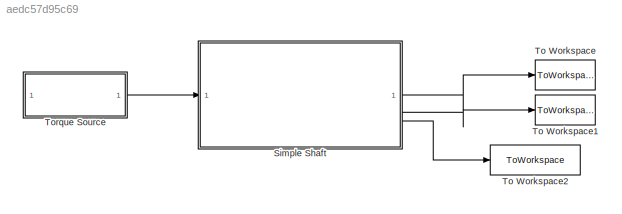
MODEL slx_aedc57d95c69
KIND model
CONFIG AbsTol = auto
CONFIG EnableMultiTasking = off
CONFIG FixedStep = .001
CONFIG MaxStep = auto
CONFIG MinStep = auto
CONFIG RelTol = 1e-3
CONFIG SampleTimeConstraint = Unconstrained
CONFIG SolverName = FixedStepAuto
CONFIG StartTime = 0.0
CONFIG StopTime = 25
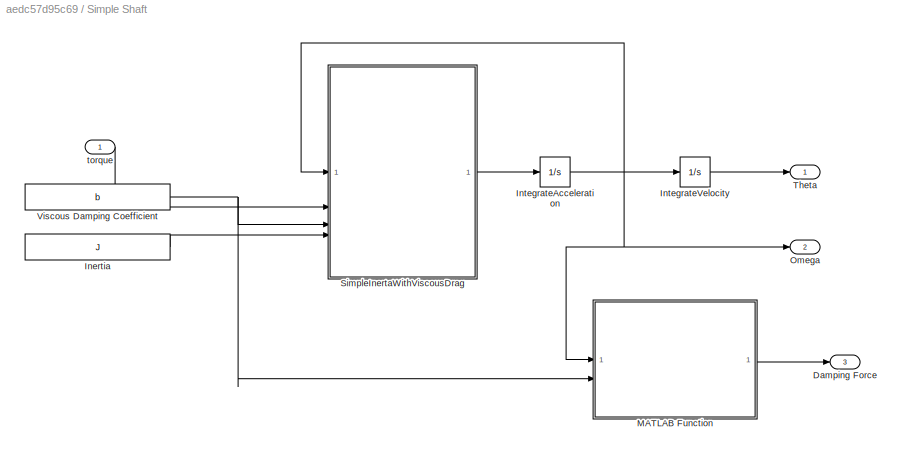
BLOCK [SubSystem] Simple Shaft
BLOCK [Outport] Simple Shaft/Damping Force
  Port = 3
BLOCK [Constant] Simple Shaft/Inertia
  Value = J
BLOCK [Integrator] Simple Shaft/IntegrateAcceleration
  InitialCondition = omega0
BLOCK [Integrator] Simple Shaft/IntegrateVelocity
  InitialCondition = theta0
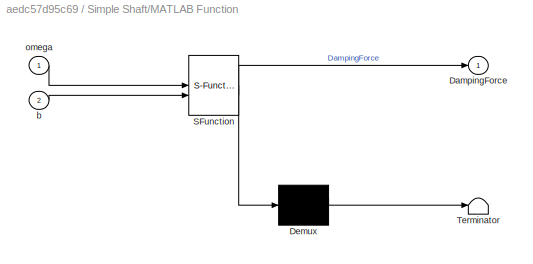
BLOCK [SubSystem] Simple Shaft/MATLAB Function
  ErrorFcn = Stateflow.Translate.translate
  PermitHierarchicalResolution = ExplicitOnly
  SFBlockType = MATLAB Function
  TreatAsAtomicUnit = on
BLOCK [Demux] Simple Shaft/MATLAB Function/ Demux 
  Outputs = 1
BLOCK [S-Function] Simple Shaft/MATLAB Function/ SFunction 
  EnableBusSupport = on
  FunctionName = sf_sfun
  PortCounts = [2 2]
  SFcnIsStateOwnerBlock = off
  SFunctionDeploymentMode = off
  Tag = Stateflow S-Function 1
BLOCK [Terminator] Simple Shaft/MATLAB Function/ Terminator 
BLOCK [Outport] Simple Shaft/MATLAB Function/DampingForce
  VectorParamsAs1DForOutWhenUnconnected = off
BLOCK [Inport] Simple Shaft/MATLAB Function/b
  Port = 2
BLOCK [Inport] Simple Shaft/MATLAB Function/omega
BLOCK [Outport] Simple Shaft/Omega
  Port = 2
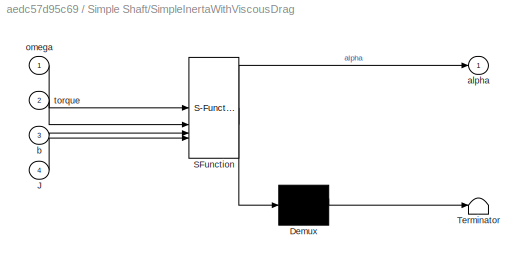
BLOCK [SubSystem] Simple Shaft/SimpleInertaWithViscousDrag
  ErrorFcn = Stateflow.Translate.translate
  PermitHierarchicalResolution = ExplicitOnly
  SFBlockType = MATLAB Function
  TreatAsAtomicUnit = on
BLOCK [Demux] Simple Shaft/SimpleInertaWithViscousDrag/ Demux 
  Outputs = 1
BLOCK [S-Function] Simple Shaft/SimpleInertaWithViscousDrag/ SFunction 
  EnableBusSupport = on
  FunctionName = sf_sfun
  PortCounts = [4 2]
  SFcnIsStateOwnerBlock = off
  SFunctionDeploymentMode = off
  Tag = Stateflow S-Function 2
BLOCK [Terminator] Simple Shaft/SimpleInertaWithViscousDrag/ Terminator 
BLOCK [Inport] Simple Shaft/SimpleInertaWithViscousDrag/J
  Port = 4
BLOCK [Outport] Simple Shaft/SimpleInertaWithViscousDrag/alpha
BLOCK [Inport] Simple Shaft/SimpleInertaWithViscousDrag/b
  Port = 3
BLOCK [Inport] Simple Shaft/SimpleInertaWithViscousDrag/omega
BLOCK [Inport] Simple Shaft/SimpleInertaWithViscousDrag/torque
  Port = 2
BLOCK [Outport] Simple Shaft/Theta
BLOCK [Constant] Simple Shaft/Viscous Damping Coefficient
  Value = b
BLOCK [Inport] Simple Shaft/torque
BLOCK [ToWorkspace] To Workspace
  FixptAsFi = on
  MaxDataPoints = inf
  SampleTime = -1
  SaveFormat = Timeseries
  VariableName = theta
BLOCK [ToWorkspace] To Workspace1
  FixptAsFi = on
  MaxDataPoints = inf
  SampleTime = -1
  SaveFormat = Timeseries
  VariableName = omega
BLOCK [ToWorkspace] To Workspace2
  FixptAsFi = on
  MaxDataPoints = inf
  SampleTime = -1
  SaveFormat = Timeseries
  VariableName = DampingForce
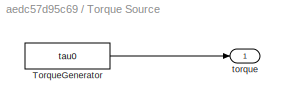
BLOCK [SubSystem] Torque Source
BLOCK [Constant] Torque Source/TorqueGenerator
  Value = tau0
BLOCK [Outport] Torque Source/torque
LINE Simple Shaft/Inertia:1 -> Simple Shaft/SimpleInertaWithViscousDrag:4
NET Simple Shaft/IntegrateAcceleration:1 -> Simple Shaft/IntegrateVelocity:1, Simple Shaft/MATLAB Function:1, Simple Shaft/Omega:1, Simple Shaft/SimpleInertaWithViscousDrag:1
LINE Simple Shaft/IntegrateVelocity:1 -> Simple Shaft/Theta:1
LINE Simple Shaft/MATLAB Function:1 -> Simple Shaft/Damping Force:1
LINE Simple Shaft/SimpleInertaWithViscousDrag:1 -> Simple Shaft/IntegrateAcceleration:1
NET Simple Shaft/Viscous Damping Coefficient:1 -> Simple Shaft/MATLAB Function:2, Simple Shaft/SimpleInertaWithViscousDrag:3
LINE Simple Shaft/torque:1 -> Simple Shaft/SimpleInertaWithViscousDrag:2
LINE Simple Shaft:1 -> To Workspace:1
LINE Simple Shaft:2 -> To Workspace1:1
LINE Simple Shaft:3 -> To Workspace2:1
LINE Torque Source/TorqueGenerator:1 -> Torque Source/torque:1
LINE Torque Source:1 -> Simple Shaft:1
note: NET lines group one-source signal fan-out (src -> all destinations, sorted); 1:1 wires keep LINE
CHART Simple Shaft/MATLAB Function states=1 transitions=1
  STATE_LABEL 'eML_blk_kernel()'
  STATE_LABEL 'SCRIPT:\nfunction DampingForce = fcn(omega,b)\nDampingForce = omega * b\n\n\n'
CHART Simple Shaft/SimpleInertaWithViscousDrag states=1 transitions=1
  STATE_LABEL 'eML_blk_kernel()'
  STATE_LABEL 'SCRIPT:\nfunction alpha = fcn(omega, torque,b, J)\nalpha = (torque - omega * b)/J;\n'
CHART  states=0 transitions=0
CHART  states=0 transitions=0
